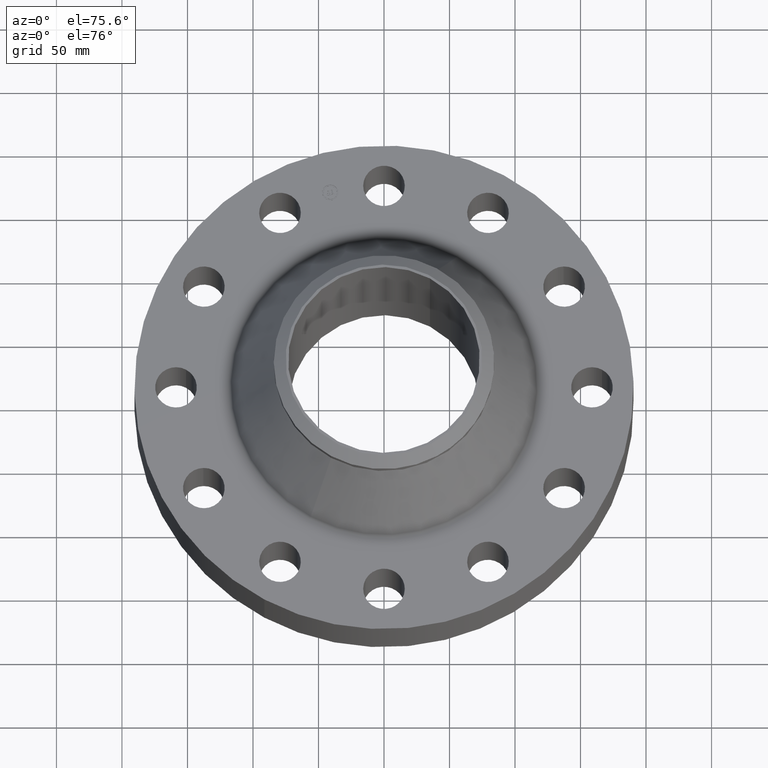
[diagram: clean part render]
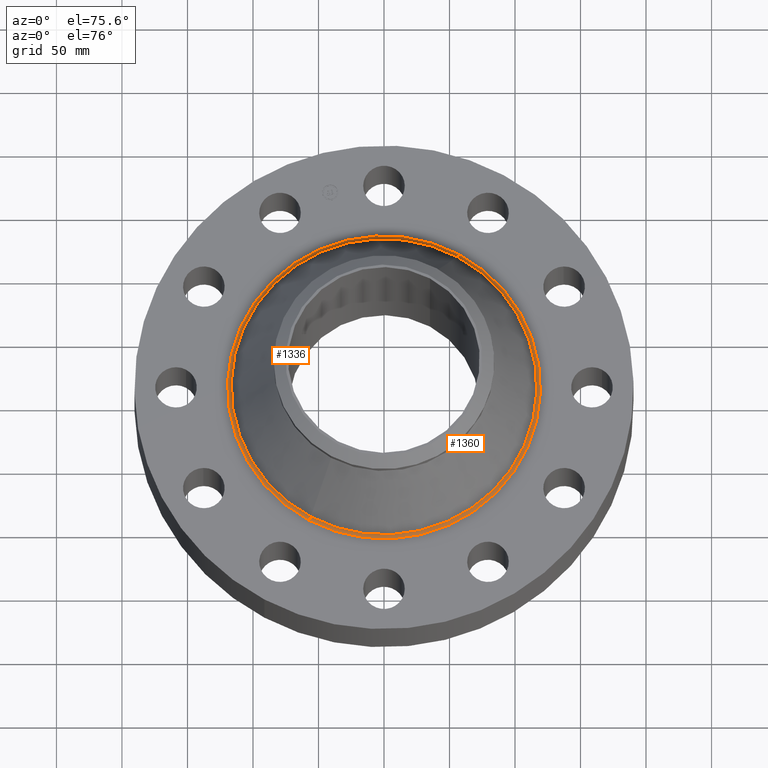
[diagram: same view with one multi-face feature highlighted, each face labeled with its STEP entity id]
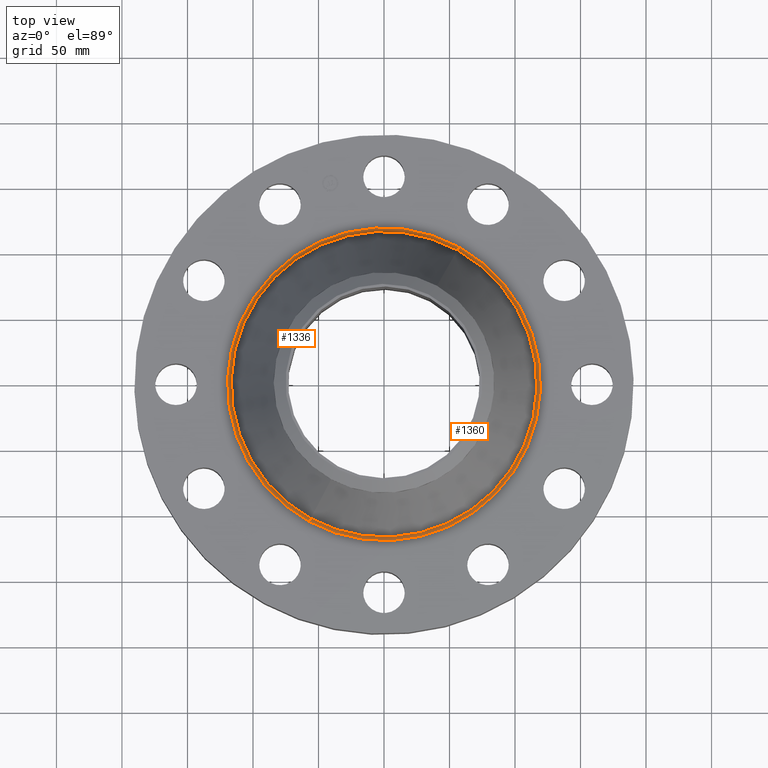
[diagram: same view with one multi-face feature highlighted, each face labeled with its STEP entity id]
A machine part, auxiliary view. The highlighted faces form ONE feature: a constant-radius fillet chain: 2 tangent blend faces with common blend radius 3.048 mm. The faces share edges in the B-rep.
A second angle (top view) of the same feature is appended — it is thin or edge-on in the first view.
Their STEP definitions:
[1] entity #1336 (Torus):
#416=AXIS2_PLACEMENT_3D('Circle Axis2P3D',#414,#415,$) ;
#1309=AXIS2_PLACEMENT_3D('Torus Axis2P3D',#1306,#1307,#1308) ;
#1313=AXIS2_PLACEMENT_3D('Circle Axis2P3D',#1311,#1312,$) ;
#1320=AXIS2_PLACEMENT_3D('Circle Axis2P3D',#1318,#1319,$) ;
#1327=AXIS2_PLACEMENT_3D('Circle Axis2P3D',#1325,#1326,$) ;
#414=CARTESIAN_POINT('Axis2P3D Location',(4.36653687836E-011,-3.05197686895E-011,2.19000000001)) ;
#418=CARTESIAN_POINT('Vertex',(-2.25394743302,-4.12582310152,2.19000000001)) ;
#420=CARTESIAN_POINT('Vertex',(2.25394743302,4.12582310152,2.19000000001)) ;
#1306=CARTESIAN_POINT('Axis2P3D Location',(0.,0.,2.31000000001)) ;
#1311=CARTESIAN_POINT('Axis2P3D Location',(-2.25394743302,-4.12582310152,2.31000000001)) ;
#1315=CARTESIAN_POINT('Vertex',(-2.20183489246,-4.03043173589,2.25915936193)) ;
#1318=CARTESIAN_POINT('Axis2P3D Location',(0.,0.,2.25915936193)) ;
#1322=CARTESIAN_POINT('Vertex',(2.20183489246,4.03043173589,2.25915936193)) ;
#1325=CARTESIAN_POINT('Axis2P3D Location',(2.25394743302,4.12582310152,2.31000000001)) ;
#415=DIRECTION('Axis2P3D Direction',(0.,0.,-0.0393700787402)) ;
#1307=DIRECTION('Axis2P3D Direction',(0.,0.,-0.0393700787402)) ;
#1308=DIRECTION('Axis2P3D XDirection',(-0.0188750212049,-0.0345504945626,0.)) ;
#1312=DIRECTION('Axis2P3D Direction',(0.0345504945626,-0.0188750212049,0.)) ;
#1319=DIRECTION('Axis2P3D Direction',(-0.,0.,-0.0393700787402)) ;
#1326=DIRECTION('Axis2P3D Direction',(-0.0345504945626,0.0188750212049,0.)) ;
#1331=ORIENTED_EDGE('',*,*,#422,.F.) ;
#1332=ORIENTED_EDGE('',*,*,#1317,.T.) ;
#1333=ORIENTED_EDGE('',*,*,#1324,.T.) ;
#1334=ORIENTED_EDGE('',*,*,#1329,.F.) ;
#1336=ADVANCED_FACE('PartBody',(#1335),#1310,.F.) ;
#417=CIRCLE('generated circle',#416,4.70135036944) ;
#1314=CIRCLE('generated circle',#1313,0.12) ;
#1321=CIRCLE('generated circle',#1320,4.59265248754) ;
#1328=CIRCLE('generated circle',#1327,0.12) ;
#1310=TOROIDAL_SURFACE('homeo Torus',#1309,4.7013503694,0.12) ;
#422=EDGE_CURVE('',#419,#421,#417,.T.) ;
#1317=EDGE_CURVE('',#419,#1316,#1314,.T.) ;
#1324=EDGE_CURVE('',#1316,#1323,#1321,.T.) ;
#1329=EDGE_CURVE('',#421,#1323,#1328,.T.) ;
#1330=EDGE_LOOP('',(#1331,#1332,#1333,#1334)) ;
#1335=FACE_OUTER_BOUND('',#1330,.T.) ;
#419=VERTEX_POINT('',#418) ;
#421=VERTEX_POINT('',#420) ;
#1316=VERTEX_POINT('',#1315) ;
#1323=VERTEX_POINT('',#1322) ;
[2] entity #1360 (Torus):
#425=AXIS2_PLACEMENT_3D('Circle Axis2P3D',#423,#424,$) ;
#1313=AXIS2_PLACEMENT_3D('Circle Axis2P3D',#1311,#1312,$) ;
#1327=AXIS2_PLACEMENT_3D('Circle Axis2P3D',#1325,#1326,$) ;
#1347=AXIS2_PLACEMENT_3D('Torus Axis2P3D',#1344,#1345,#1346) ;
#1351=AXIS2_PLACEMENT_3D('Circle Axis2P3D',#1349,#1350,$) ;
#418=CARTESIAN_POINT('Vertex',(-2.25394743302,-4.12582310152,2.19000000001)) ;
#420=CARTESIAN_POINT('Vertex',(2.25394743302,4.12582310152,2.19000000001)) ;
#423=CARTESIAN_POINT('Axis2P3D Location',(-4.36653687836E-011,1.71884204158E-011,2.19000000001)) ;
#1311=CARTESIAN_POINT('Axis2P3D Location',(-2.25394743302,-4.12582310152,2.31000000001)) ;
#1315=CARTESIAN_POINT('Vertex',(-2.20183489246,-4.03043173589,2.25915936193)) ;
#1322=CARTESIAN_POINT('Vertex',(2.20183489246,4.03043173589,2.25915936193)) ;
#1325=CARTESIAN_POINT('Axis2P3D Location',(2.25394743302,4.12582310152,2.31000000001)) ;
#1344=CARTESIAN_POINT('Axis2P3D Location',(0.,0.,2.31000000001)) ;
#1349=CARTESIAN_POINT('Axis2P3D Location',(0.,0.,2.25915936193)) ;
#424=DIRECTION('Axis2P3D Direction',(0.,0.,-0.0393700787402)) ;
#1312=DIRECTION('Axis2P3D Direction',(0.0345504945626,-0.0188750212049,0.)) ;
#1326=DIRECTION('Axis2P3D Direction',(-0.0345504945626,0.0188750212049,0.)) ;
#1345=DIRECTION('Axis2P3D Direction',(0.,0.,-0.0393700787402)) ;
#1346=DIRECTION('Axis2P3D XDirection',(0.0188750212049,0.0345504945626,0.)) ;
#1350=DIRECTION('Axis2P3D Direction',(-0.,0.,-0.0393700787402)) ;
#1355=ORIENTED_EDGE('',*,*,#427,.F.) ;
#1356=ORIENTED_EDGE('',*,*,#1329,.T.) ;
#1357=ORIENTED_EDGE('',*,*,#1353,.T.) ;
#1358=ORIENTED_EDGE('',*,*,#1317,.F.) ;
#1360=ADVANCED_FACE('PartBody',(#1359),#1348,.F.) ;
#426=CIRCLE('generated circle',#425,4.70135036944) ;
#1314=CIRCLE('generated circle',#1313,0.12) ;
#1328=CIRCLE('generated circle',#1327,0.12) ;
#1352=CIRCLE('generated circle',#1351,4.59265248754) ;
#1348=TOROIDAL_SURFACE('homeo Torus',#1347,4.7013503694,0.12) ;
#427=EDGE_CURVE('',#421,#419,#426,.T.) ;
#1317=EDGE_CURVE('',#419,#1316,#1314,.T.) ;
#1329=EDGE_CURVE('',#421,#1323,#1328,.T.) ;
#1353=EDGE_CURVE('',#1323,#1316,#1352,.T.) ;
#1354=EDGE_LOOP('',(#1355,#1356,#1357,#1358)) ;
#1359=FACE_OUTER_BOUND('',#1354,.T.) ;
#419=VERTEX_POINT('',#418) ;
#421=VERTEX_POINT('',#420) ;
#1316=VERTEX_POINT('',#1315) ;
#1323=VERTEX_POINT('',#1322) ;